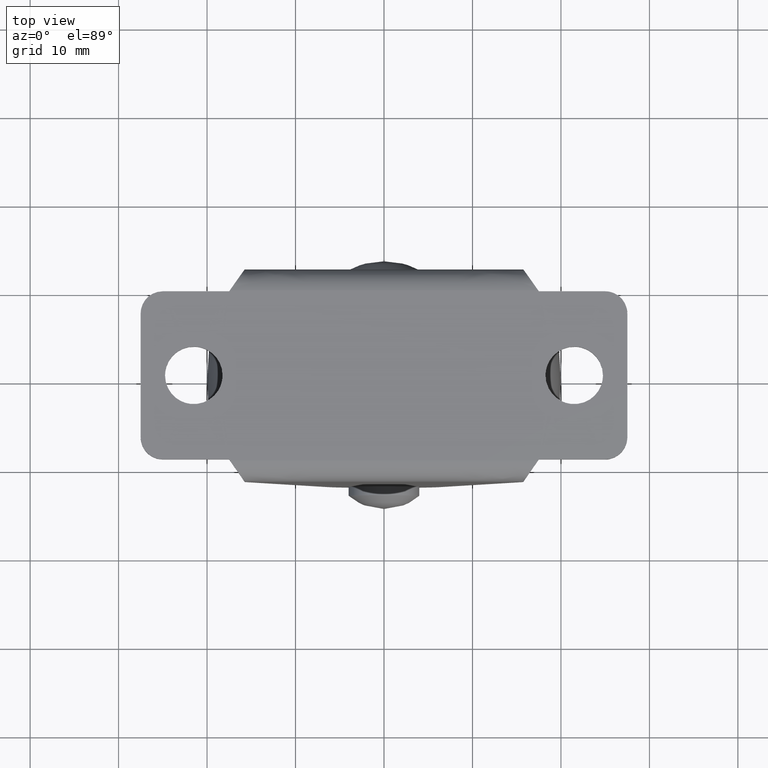
[diagram: clean part render]
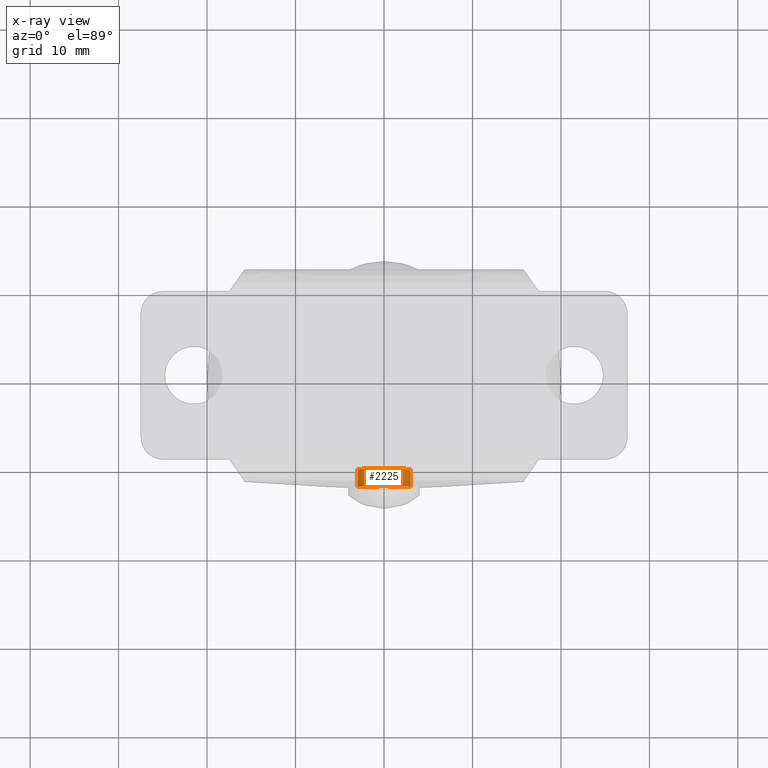
[diagram: x-ray — body ghosted, one internal face saturated and labeled with its STEP entity id]
A machine part, top view, then the same camera in x-ray: the body is ghosted and one INTERNAL B-rep face — a face not visible from any outside direction — is saturated and labeled: STEP entity #2225.
In plain terms, the highlighted face is a freeform B-spline surface patch.
Its self-contained STEP definition (entity closure, byte-faithful):
#2123=CARTESIAN_POINT('',(-2.979028579091197,-12.050000000000002,-35.354102703970305));
#2124=CARTESIAN_POINT('',(-2.989162846346016,-12.050000000000004,-35.268844185913949));
#2125=CARTESIAN_POINT('',(-2.994404395265800,-12.050000000000001,-35.183145618604577));
#2126=CARTESIAN_POINT('',(-3.177550013870383,-12.050000000000002,-32.188741223338795));
#2127=CARTESIAN_POINT('',(-0.183145618604583,-12.050000000000001,-32.005595604734197));
#2128=CARTESIAN_POINT('',(2.811258776661216,-12.050000000000002,-31.822449986129620));
#2129=CARTESIAN_POINT('',(2.994404395265800,-12.050000000000001,-34.816854381395423));
#2130=CARTESIAN_POINT('',(-2.979028579091197,-9.948749999999999,-35.354102703970305));
#2131=CARTESIAN_POINT('',(-2.989162846346016,-9.948749999999999,-35.268844185913949));
#2132=CARTESIAN_POINT('',(-2.994404395265800,-9.948749999999999,-35.183145618604577));
#2133=CARTESIAN_POINT('',(-3.177550013870383,-9.948749999999999,-32.188741223338795));
#2134=CARTESIAN_POINT('',(-0.183145618604583,-9.948749999999999,-32.005595604734197));
#2135=CARTESIAN_POINT('',(2.811258776661216,-9.948749999999999,-31.822449986129620));
#2136=CARTESIAN_POINT('',(2.994404395265800,-9.948749999999999,-34.816854381395423));
#2144=(BOUNDED_SURFACE()B_SPLINE_SURFACE(2,1,((#2123,#2130),(#2124,#2131),(#2125,#2132),(#2126,#2133),(#2127,#2134),(#2128,#2135),(#2129,#2136)),.UNSPECIFIED.,.F.,.F.,.U.)B_SPLINE_SURFACE_WITH_KNOTS((3,2,2,3),(2,2),(0.0,0.198822509939099,5.169385258416571,10.139948006894040),(0.0,2.101250000000004),.UNSPECIFIED.)GEOMETRIC_REPRESENTATION_ITEM()RATIONAL_B_SPLINE_SURFACE(((0.977505800795127,0.977505800795127),(0.988284271247462,0.988284271247462),(1.0,1.0),(0.707106781186548,0.707106781186548),(1.0,1.0),(0.707106781186548,0.707106781186548),(1.0,1.0)))REPRESENTATION_ITEM('')SURFACE());
#2145=CARTESIAN_POINT('',(-2.979028579089705,-10.0,-35.354102703982861));
#2146=VERTEX_POINT('',#2145);
#2147=CARTESIAN_POINT('',(0.0,-10.0,-31.999999999999812));
#2148=VERTEX_POINT('',#2147);
#2149=CARTESIAN_POINT('',(-2.979028579089705,-10.0,-35.354102703982853));
#2150=CARTESIAN_POINT('',(-3.000000000000200,-10.0,-35.177672358968429));
#2151=CARTESIAN_POINT('',(-3.000000000000200,-10.0,-35.0));
#2152=CARTESIAN_POINT('',(-3.000000000000200,-10.000000000000002,-31.999999999999815));
#2153=CARTESIAN_POINT('',(0.0,-10.0,-31.999999999999812));
#2161=(BOUNDED_CURVE()B_SPLINE_CURVE(2,(#2149,#2150,#2151,#2152,#2153),.UNSPECIFIED.,.F.,.U.)B_SPLINE_CURVE_WITH_KNOTS((3,2,3),(0.229562473514219,0.250000000000000,0.500000000000000),.UNSPECIFIED.)CURVE()GEOMETRIC_REPRESENTATION_ITEM()RATIONAL_B_SPLINE_CURVE((0.956026754185093,0.976055948331978,1.0,0.707106781186548,1.0))REPRESENTATION_ITEM(''));
#2162=EDGE_CURVE('',#2146,#2148,#2161,.T.);
#2163=ORIENTED_EDGE('',*,*,#2162,.T.);
#2164=CARTESIAN_POINT('',(2.994404395259357,-10.0,-34.816854381290071));
#2165=VERTEX_POINT('',#2164);
#2166=CARTESIAN_POINT('',(0.0,-10.0,-31.999999999999812));
#2167=CARTESIAN_POINT('',(2.822118200518337,-10.0,-31.999999999999801));
#2168=CARTESIAN_POINT('',(2.994404395259356,-10.0,-34.816854381290071));
#2176=(BOUNDED_CURVE()B_SPLINE_CURVE(2,(#2166,#2167,#2168),.UNSPECIFIED.,.F.,.U.)B_SPLINE_CURVE_WITH_KNOTS((3,3),(0.500000000000000,0.739332962229828),.UNSPECIFIED.)CURVE()GEOMETRIC_REPRESENTATION_ITEM()RATIONAL_B_SPLINE_CURVE((1.0,0.719603993297389,0.976072041647183))REPRESENTATION_ITEM(''));
#2177=EDGE_CURVE('',#2148,#2165,#2176,.T.);
#2178=ORIENTED_EDGE('',*,*,#2177,.T.);
#2179=CARTESIAN_POINT('',(2.994404395259357,-12.0,-34.816854381290071));
#2180=VERTEX_POINT('',#2179);
#2181=CARTESIAN_POINT('',(2.994404395259357,-12.0,-34.816854381290071));
#2182=CARTESIAN_POINT('',(2.994404395259357,-10.0,-34.816854381290071));
#2183=QUASI_UNIFORM_CURVE('',1,(#2181,#2182),.UNSPECIFIED.,.F.,.U.);
#2184=EDGE_CURVE('',#2180,#2165,#2183,.T.);
#2185=ORIENTED_EDGE('',*,*,#2184,.F.);
#2186=CARTESIAN_POINT('',(0.0,-12.0,-31.999999999999812));
#2187=VERTEX_POINT('',#2186);
#2188=CARTESIAN_POINT('',(0.0,-12.0,-31.999999999999812));
#2189=CARTESIAN_POINT('',(2.822118200518337,-12.0,-31.999999999999801));
#2190=CARTESIAN_POINT('',(2.994404395259358,-12.0,-34.816854381290071));
#2198=(BOUNDED_CURVE()B_SPLINE_CURVE(2,(#2188,#2189,#2190),.UNSPECIFIED.,.F.,.U.)B_SPLINE_CURVE_WITH_KNOTS((3,3),(0.500000000000000,0.739332962229828),.UNSPECIFIED.)CURVE()GEOMETRIC_REPRESENTATION_ITEM()RATIONAL_B_SPLINE_CURVE((1.0,0.719603993297389,0.976072041647183))REPRESENTATION_ITEM(''));
#2199=EDGE_CURVE('',#2187,#2180,#2198,.T.);
#2200=ORIENTED_EDGE('',*,*,#2199,.F.);
#2201=CARTESIAN_POINT('',(-2.979028579089705,-12.0,-35.354102703982853));
#2202=VERTEX_POINT('',#2201);
#2203=CARTESIAN_POINT('',(-2.979028579089705,-11.999999999999998,-35.354102703982861));
#2204=CARTESIAN_POINT('',(-3.000000000000200,-12.0,-35.177672358968437));
#2205=CARTESIAN_POINT('',(-3.000000000000200,-12.0,-35.0));
#2206=CARTESIAN_POINT('',(-3.000000000000200,-12.0,-31.999999999999815));
#2207=CARTESIAN_POINT('',(0.0,-12.0,-31.999999999999812));
#2215=(BOUNDED_CURVE()B_SPLINE_CURVE(2,(#2203,#2204,#2205,#2206,#2207),.UNSPECIFIED.,.F.,.U.)B_SPLINE_CURVE_WITH_KNOTS((3,2,3),(0.229562473514220,0.250000000000000,0.500000000000000),.UNSPECIFIED.)CURVE()GEOMETRIC_REPRESENTATION_ITEM()RATIONAL_B_SPLINE_CURVE((0.956026754185094,0.976055948331978,1.0,0.707106781186548,1.0))REPRESENTATION_ITEM(''));
#2216=EDGE_CURVE('',#2202,#2187,#2215,.T.);
#2217=ORIENTED_EDGE('',*,*,#2216,.F.);
#2218=CARTESIAN_POINT('',(-2.979028579089705,-12.0,-35.354102703982853));
#2219=CARTESIAN_POINT('',(-2.979028579089705,-10.0,-35.354102703982861));
#2220=QUASI_UNIFORM_CURVE('',1,(#2218,#2219),.UNSPECIFIED.,.F.,.U.);
#2221=EDGE_CURVE('',#2202,#2146,#2220,.T.);
#2222=ORIENTED_EDGE('',*,*,#2221,.T.);
#2223=EDGE_LOOP('',(#2163,#2178,#2185,#2200,#2217,#2222));
#2224=FACE_OUTER_BOUND('',#2223,.T.);
#2225=ADVANCED_FACE('',(#2224),#2144,.F.);